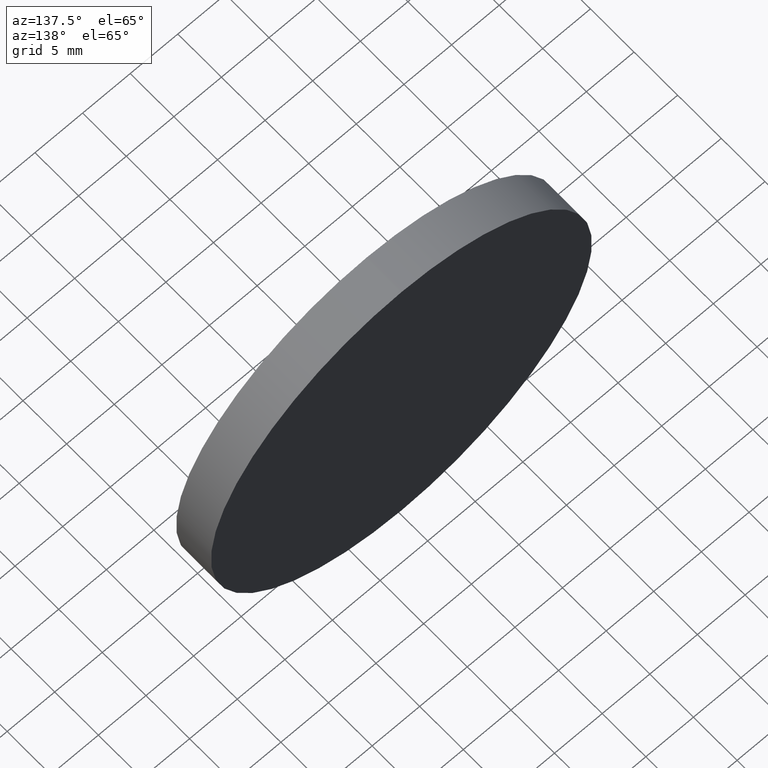
[diagram: clean part render]
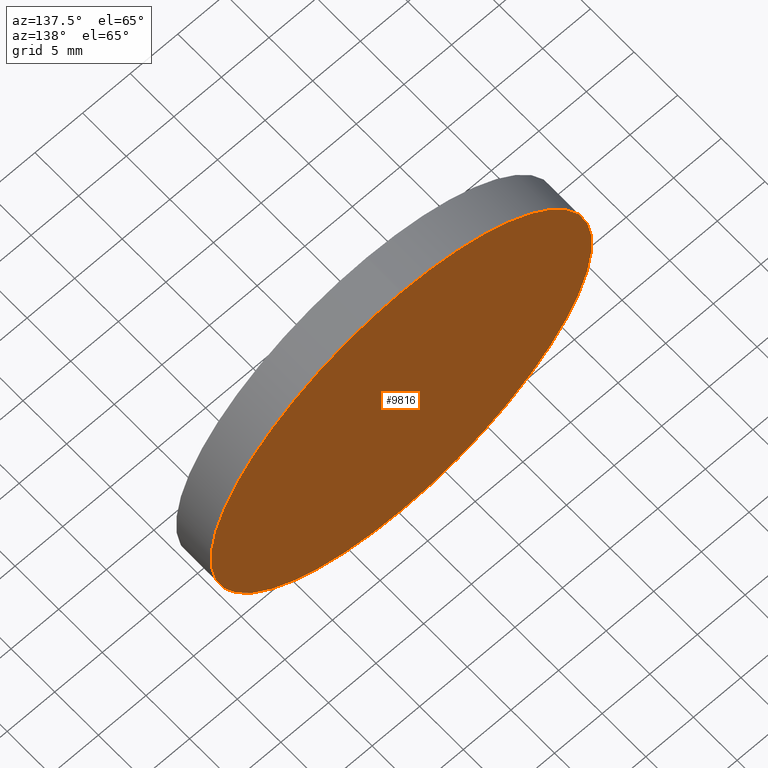
[diagram: same view with one face highlighted and labeled with its STEP entity id]
A machine part, auxiliary view. The second image highlights one B-rep face of the part: STEP entity #9816.
In plain terms, the highlighted planar face has unit normal (0, 1, 0).
Its self-contained STEP definition (entity closure, byte-faithful):
#67 = PLANE ( 'NONE',  #10779 ) ;
#81 = EDGE_CURVE ( 'NONE', #12709, #6497, #9178, .T. ) ;
#1571 = FACE_OUTER_BOUND ( 'NONE', #5019, .T. ) ;
#2168 = AXIS2_PLACEMENT_3D ( 'NONE', #12133, #6072, #13165 ) ;
#2517 = DIRECTION ( 'NONE',  ( 0.000000000000000000, 1.000000000000000000, 0.000000000000000000 ) ) ;
#3351 = CARTESIAN_POINT ( 'NONE',  ( 0.000000000000000000, 2.000000000000000000, 0.000000000000000000 ) ) ;
#3436 = DIRECTION ( 'NONE',  ( 0.000000000000000000, 0.000000000000000000, 1.000000000000000000 ) ) ;
#4123 = DIRECTION ( 'NONE',  ( 0.000000000000000000, -0.000000000000000000, 1.000000000000000000 ) ) ;
#4820 = CARTESIAN_POINT ( 'NONE',  ( 2.449293598294706513E-15, 2.000000000000000000, 20.00000000000000000 ) ) ;
#4924 = ORIENTED_EDGE ( 'NONE', *, *, #81, .T. ) ;
#5019 = EDGE_LOOP ( 'NONE', ( #4924, #8707 ) ) ;
#6072 = DIRECTION ( 'NONE',  ( 0.000000000000000000, 1.000000000000000000, 0.000000000000000000 ) ) ;
#6497 = VERTEX_POINT ( 'NONE', #4820 ) ;
#6582 = CIRCLE ( 'NONE', #2168, 20.00000000000000000 ) ;
#6868 = AXIS2_PLACEMENT_3D ( 'NONE', #3351, #2517, #3436 ) ;
#7199 = CARTESIAN_POINT ( 'NONE',  ( 0.000000000000000000, 2.000000000000000000, 0.000000000000000000 ) ) ;
#7574 = EDGE_CURVE ( 'NONE', #6497, #12709, #6582, .T. ) ;
#8707 = ORIENTED_EDGE ( 'NONE', *, *, #7574, .T. ) ;
#8776 = CARTESIAN_POINT ( 'NONE',  ( 0.000000000000000000, 2.000000000000000000, -20.00000000000000000 ) ) ;
#9178 = CIRCLE ( 'NONE', #6868, 20.00000000000000000 ) ;
#9183 = DIRECTION ( 'NONE',  ( 0.000000000000000000, 1.000000000000000000, 0.000000000000000000 ) ) ;
#9816 = ADVANCED_FACE ( 'NONE', ( #1571 ), #67, .T. ) ;
#10779 = AXIS2_PLACEMENT_3D ( 'NONE', #7199, #9183, #4123 ) ;
#12133 = CARTESIAN_POINT ( 'NONE',  ( 0.000000000000000000, 2.000000000000000000, 0.000000000000000000 ) ) ;
#12709 = VERTEX_POINT ( 'NONE', #8776 ) ;
#13165 = DIRECTION ( 'NONE',  ( 0.000000000000000000, 0.000000000000000000, 1.000000000000000000 ) ) ;